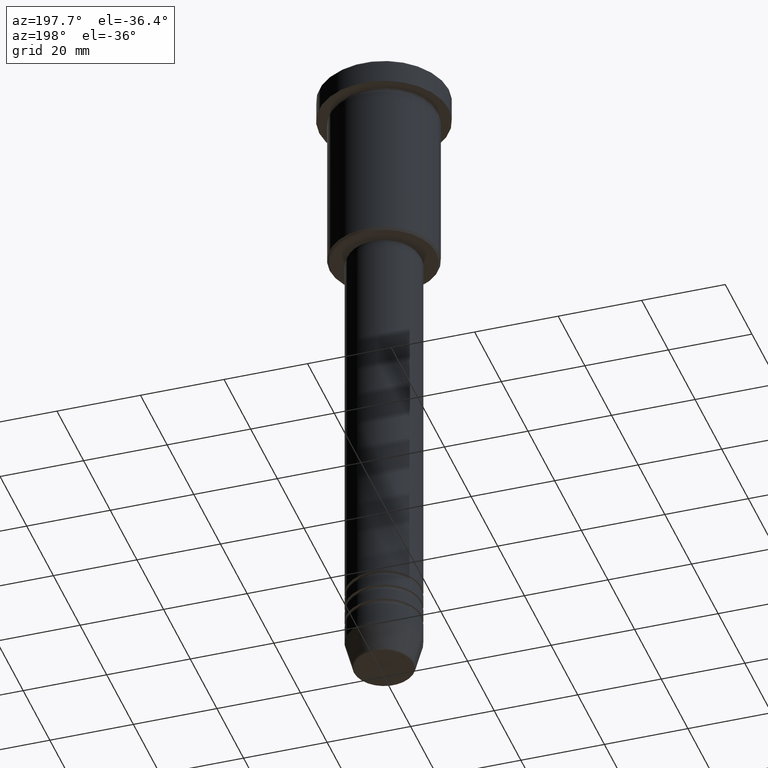
[diagram: clean part render]
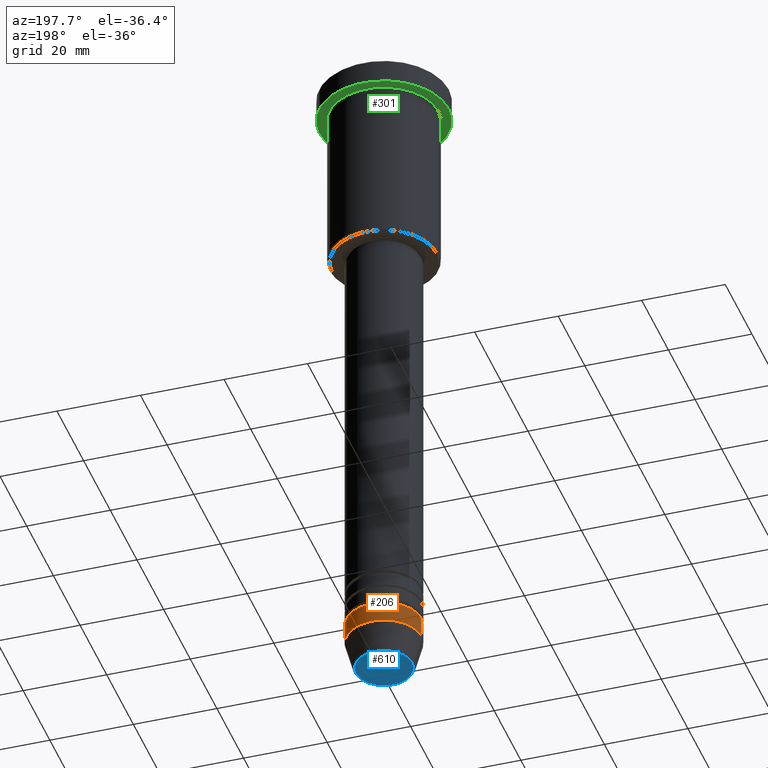
[diagram: same view with three faces highlighted in distinct colors, each labeled with its STEP entity id]
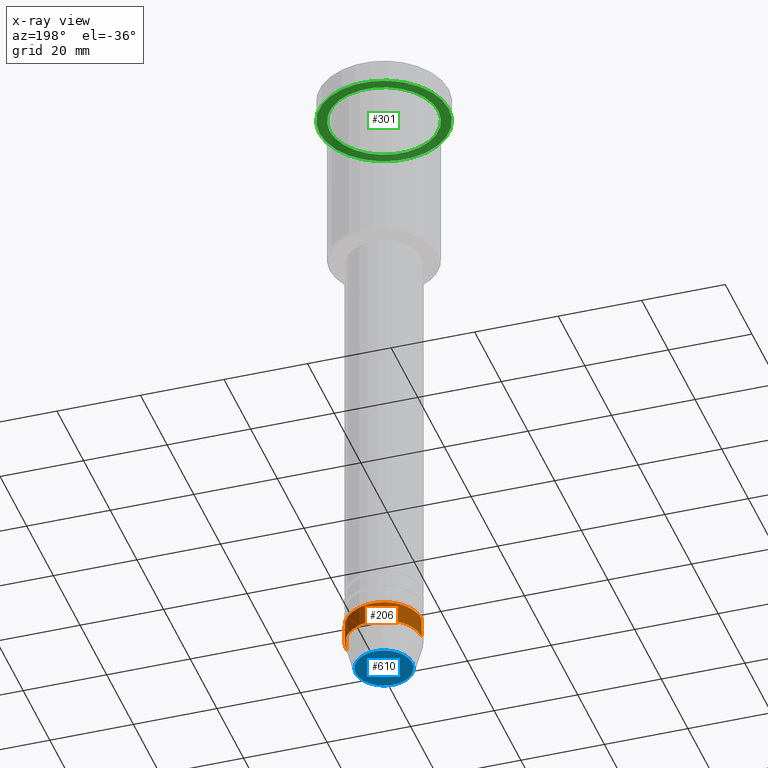
[diagram: x-ray of the same camera — body ghosted, the three highlighted faces saturated]
A machine part, auxiliary view with three faces highlighted in distinct colors.
The next image is the same camera in x-ray (body ghosted, the three faces saturated) — at least one of them is partly hidden behind the body in this view.
Their STEP definitions:

[orange] entity #206 — the highlighted cylindrical surface (partial cylindrical patch) has radius 9 mm, axis along (-0, -0, 1).
#5 = VERTEX_POINT ( 'NONE', #111 ) ;
#57 = ORIENTED_EDGE ( 'NONE', *, *, #923, .F. ) ;
#111 = CARTESIAN_POINT ( 'NONE',  ( 9.000000000000000000, 0.000000000000000000, -154.0000000000000284 ) ) ;
#143 = ORIENTED_EDGE ( 'NONE', *, *, #674, .F. ) ;
#206 = ADVANCED_FACE ( 'NONE', ( #423 ), #612, .T. ) ;
#215 = DIRECTION ( 'NONE',  ( -0.000000000000000000, -0.000000000000000000, 1.000000000000000000 ) ) ;
#233 = DIRECTION ( 'NONE',  ( 1.000000000000000000, 0.000000000000000000, 0.000000000000000000 ) ) ;
#237 = VECTOR ( 'NONE', #1121, 1000.000000000000000 ) ;
#304 = DIRECTION ( 'NONE',  ( 1.000000000000000000, 0.000000000000000000, 0.000000000000000000 ) ) ;
#321 = CARTESIAN_POINT ( 'NONE',  ( -9.000000000000000000, 1.102182119232617714E-15, 0.000000000000000000 ) ) ;
#338 = AXIS2_PLACEMENT_3D ( 'NONE', #530, #619, #624 ) ;
#372 = LINE ( 'NONE', #1095, #237 ) ;
#386 = ORIENTED_EDGE ( 'NONE', *, *, #1013, .T. ) ;
#423 = FACE_OUTER_BOUND ( 'NONE', #833, .T. ) ;
#486 = CARTESIAN_POINT ( 'NONE',  ( 9.000000000000000000, 0.000000000000000000, -149.0000000000000284 ) ) ;
#489 = AXIS2_PLACEMENT_3D ( 'NONE', #714, #1061, #233 ) ;
#521 = VERTEX_POINT ( 'NONE', #731 ) ;
#530 = CARTESIAN_POINT ( 'NONE',  ( 0.000000000000000000, 0.000000000000000000, -149.0000000000000284 ) ) ;
#567 = VERTEX_POINT ( 'NONE', #735 ) ;
#612 = CYLINDRICAL_SURFACE ( 'NONE', #489, 9.000000000000000000 ) ;
#619 = DIRECTION ( 'NONE',  ( -0.000000000000000000, -0.000000000000000000, 1.000000000000000000 ) ) ;
#624 = DIRECTION ( 'NONE',  ( 1.000000000000000000, 0.000000000000000000, 0.000000000000000000 ) ) ;
#674 = EDGE_CURVE ( 'NONE', #5, #838, #372, .T. ) ;
#678 = ORIENTED_EDGE ( 'NONE', *, *, #1002, .T. ) ;
#691 = CARTESIAN_POINT ( 'NONE',  ( 0.000000000000000000, 0.000000000000000000, -154.0000000000000284 ) ) ;
#714 = CARTESIAN_POINT ( 'NONE',  ( 0.000000000000000000, 0.000000000000000000, 0.000000000000000000 ) ) ;
#731 = CARTESIAN_POINT ( 'NONE',  ( -9.000000000000000000, 1.102182119232617714E-15, -149.0000000000000284 ) ) ;
#735 = CARTESIAN_POINT ( 'NONE',  ( -9.000000000000000000, 1.102182119232617714E-15, -154.0000000000000284 ) ) ;
#782 = LINE ( 'NONE', #321, #1010 ) ;
#833 = EDGE_LOOP ( 'NONE', ( #386, #678, #57, #143 ) ) ;
#838 = VERTEX_POINT ( 'NONE', #486 ) ;
#880 = DIRECTION ( 'NONE',  ( -0.000000000000000000, -0.000000000000000000, 1.000000000000000000 ) ) ;
#897 = CIRCLE ( 'NONE', #338, 9.000000000000000000 ) ;
#923 = EDGE_CURVE ( 'NONE', #838, #521, #897, .T. ) ;
#1002 = EDGE_CURVE ( 'NONE', #567, #521, #782, .T. ) ;
#1010 = VECTOR ( 'NONE', #215, 1000.000000000000000 ) ;
#1013 = EDGE_CURVE ( 'NONE', #5, #567, #1085, .T. ) ;
#1061 = DIRECTION ( 'NONE',  ( -0.000000000000000000, -0.000000000000000000, 1.000000000000000000 ) ) ;
#1085 = CIRCLE ( 'NONE', #1139, 9.000000000000000000 ) ;
#1095 = CARTESIAN_POINT ( 'NONE',  ( 9.000000000000000000, 0.000000000000000000, 0.000000000000000000 ) ) ;
#1121 = DIRECTION ( 'NONE',  ( -0.000000000000000000, -0.000000000000000000, 1.000000000000000000 ) ) ;
#1139 = AXIS2_PLACEMENT_3D ( 'NONE', #691, #880, #304 ) ;

[blue] entity #610 — the highlighted planar face has unit normal (0, -0, 1).
#60 = DIRECTION ( 'NONE',  ( 0.000000000000000000, 0.000000000000000000, -1.000000000000000000 ) ) ;
#72 = DIRECTION ( 'NONE',  ( 0.000000000000000000, -0.000000000000000000, 1.000000000000000000 ) ) ;
#204 = VERTEX_POINT ( 'NONE', #879 ) ;
#257 = PLANE ( 'NONE',  #1007 ) ;
#270 = AXIS2_PLACEMENT_3D ( 'NONE', #889, #60, #796 ) ;
#387 = DIRECTION ( 'NONE',  ( 0.000000000000000000, 0.000000000000000000, -1.000000000000000000 ) ) ;
#485 = DIRECTION ( 'NONE',  ( 1.000000000000000000, 0.000000000000000000, 0.000000000000000000 ) ) ;
#610 = ADVANCED_FACE ( 'NONE', ( #722 ), #257, .F. ) ;
#645 = CIRCLE ( 'NONE', #270, 6.740692158992658278 ) ;
#671 = EDGE_LOOP ( 'NONE', ( #762, #789 ) ) ;
#722 = FACE_OUTER_BOUND ( 'NONE', #671, .T. ) ;
#727 = EDGE_CURVE ( 'NONE', #204, #941, #1138, .T. ) ;
#762 = ORIENTED_EDGE ( 'NONE', *, *, #727, .T. ) ;
#789 = ORIENTED_EDGE ( 'NONE', *, *, #933, .T. ) ;
#796 = DIRECTION ( 'NONE',  ( 1.000000000000000000, 0.000000000000000000, 0.000000000000000000 ) ) ;
#879 = CARTESIAN_POINT ( 'NONE',  ( 6.740692158992658278, 0.000000000000000000, -161.0000000000000284 ) ) ;
#889 = CARTESIAN_POINT ( 'NONE',  ( 0.000000000000000000, 0.000000000000000000, -161.0000000000000284 ) ) ;
#901 = CARTESIAN_POINT ( 'NONE',  ( 0.000000000000000000, 0.000000000000000000, -161.0000000000000284 ) ) ;
#924 = CARTESIAN_POINT ( 'NONE',  ( 0.000000000000000000, 0.000000000000000000, -161.0000000000000284 ) ) ;
#933 = EDGE_CURVE ( 'NONE', #941, #204, #645, .T. ) ;
#941 = VERTEX_POINT ( 'NONE', #984 ) ;
#969 = AXIS2_PLACEMENT_3D ( 'NONE', #924, #387, #485 ) ;
#984 = CARTESIAN_POINT ( 'NONE',  ( -6.740692158992658278, 8.550696569392685681E-16, -161.0000000000000284 ) ) ;
#1007 = AXIS2_PLACEMENT_3D ( 'NONE', #901, #72, #1092 ) ;
#1092 = DIRECTION ( 'NONE',  ( 1.000000000000000000, 0.000000000000000000, 0.000000000000000000 ) ) ;
#1138 = CIRCLE ( 'NONE', #969, 6.740692158992658278 ) ;

[green] entity #301 — the highlighted planar face has unit normal (0, 0, -1).
#32 = EDGE_LOOP ( 'NONE', ( #657, #572 ) ) ;
#58 = EDGE_CURVE ( 'NONE', #274, #936, #512, .T. ) ;
#103 = CARTESIAN_POINT ( 'NONE',  ( 13.00000000000000000, 1.592040838891559095E-15, -5.999999999999994671 ) ) ;
#125 = DIRECTION ( 'NONE',  ( -0.000000000000000000, -0.000000000000000000, 1.000000000000000000 ) ) ;
#209 = AXIS2_PLACEMENT_3D ( 'NONE', #921, #1012, #1093 ) ;
#224 = EDGE_CURVE ( 'NONE', #867, #1125, #586, .T. ) ;
#274 = VERTEX_POINT ( 'NONE', #824 ) ;
#290 = AXIS2_PLACEMENT_3D ( 'NONE', #305, #125, #502 ) ;
#301 = ADVANCED_FACE ( 'NONE', ( #1183, #361 ), #736, .T. ) ;
#305 = CARTESIAN_POINT ( 'NONE',  ( 0.000000000000000000, 0.000000000000000000, -5.999999999999995559 ) ) ;
#345 = CARTESIAN_POINT ( 'NONE',  ( 15.50000000000000000, 0.000000000000000000, -5.999999999999995559 ) ) ;
#361 = FACE_OUTER_BOUND ( 'NONE', #563, .T. ) ;
#375 = EDGE_CURVE ( 'NONE', #1125, #867, #947, .T. ) ;
#380 = DIRECTION ( 'NONE',  ( -1.000000000000000000, 0.000000000000000000, 0.000000000000000000 ) ) ;
#428 = DIRECTION ( 'NONE',  ( -0.000000000000000000, -0.000000000000000000, 1.000000000000000000 ) ) ;
#434 = CARTESIAN_POINT ( 'NONE',  ( 0.000000000000000000, 0.000000000000000000, -5.999999999999995559 ) ) ;
#463 = ORIENTED_EDGE ( 'NONE', *, *, #1102, .F. ) ;
#484 = ORIENTED_EDGE ( 'NONE', *, *, #58, .F. ) ;
#502 = DIRECTION ( 'NONE',  ( 1.000000000000000000, 0.000000000000000000, 0.000000000000000000 ) ) ;
#512 = CIRCLE ( 'NONE', #573, 15.50000000000000000 ) ;
#551 = DIRECTION ( 'NONE',  ( -1.000000000000000000, 0.000000000000000000, 0.000000000000000000 ) ) ;
#563 = EDGE_LOOP ( 'NONE', ( #463, #484 ) ) ;
#572 = ORIENTED_EDGE ( 'NONE', *, *, #224, .T. ) ;
#573 = AXIS2_PLACEMENT_3D ( 'NONE', #434, #428, #717 ) ;
#586 = CIRCLE ( 'NONE', #703, 13.00000000000000000 ) ;
#657 = ORIENTED_EDGE ( 'NONE', *, *, #375, .T. ) ;
#685 = CIRCLE ( 'NONE', #290, 15.50000000000000000 ) ;
#686 = CARTESIAN_POINT ( 'NONE',  ( -13.00000000000000000, 0.000000000000000000, -5.999999999999994671 ) ) ;
#703 = AXIS2_PLACEMENT_3D ( 'NONE', #1155, #1070, #380 ) ;
#717 = DIRECTION ( 'NONE',  ( 1.000000000000000000, 0.000000000000000000, 0.000000000000000000 ) ) ;
#736 = PLANE ( 'NONE',  #209 ) ;
#824 = CARTESIAN_POINT ( 'NONE',  ( -15.50000000000000000, 1.898202538678397557E-15, -5.999999999999995559 ) ) ;
#867 = VERTEX_POINT ( 'NONE', #103 ) ;
#916 = CARTESIAN_POINT ( 'NONE',  ( 0.000000000000000000, 0.000000000000000000, -5.999999999999995559 ) ) ;
#921 = CARTESIAN_POINT ( 'NONE',  ( 0.000000000000000000, 15.50000000000000000, -5.999999999999995559 ) ) ;
#927 = DIRECTION ( 'NONE',  ( -0.000000000000000000, -0.000000000000000000, 1.000000000000000000 ) ) ;
#936 = VERTEX_POINT ( 'NONE', #345 ) ;
#947 = CIRCLE ( 'NONE', #1024, 13.00000000000000000 ) ;
#1012 = DIRECTION ( 'NONE',  ( 0.000000000000000000, 0.000000000000000000, -1.000000000000000000 ) ) ;
#1024 = AXIS2_PLACEMENT_3D ( 'NONE', #916, #927, #551 ) ;
#1070 = DIRECTION ( 'NONE',  ( -0.000000000000000000, -0.000000000000000000, 1.000000000000000000 ) ) ;
#1093 = DIRECTION ( 'NONE',  ( -1.000000000000000000, 0.000000000000000000, -0.000000000000000000 ) ) ;
#1102 = EDGE_CURVE ( 'NONE', #936, #274, #685, .T. ) ;
#1125 = VERTEX_POINT ( 'NONE', #686 ) ;
#1155 = CARTESIAN_POINT ( 'NONE',  ( 0.000000000000000000, 0.000000000000000000, -5.999999999999995559 ) ) ;
#1183 = FACE_BOUND ( 'NONE', #32, .T. ) ;